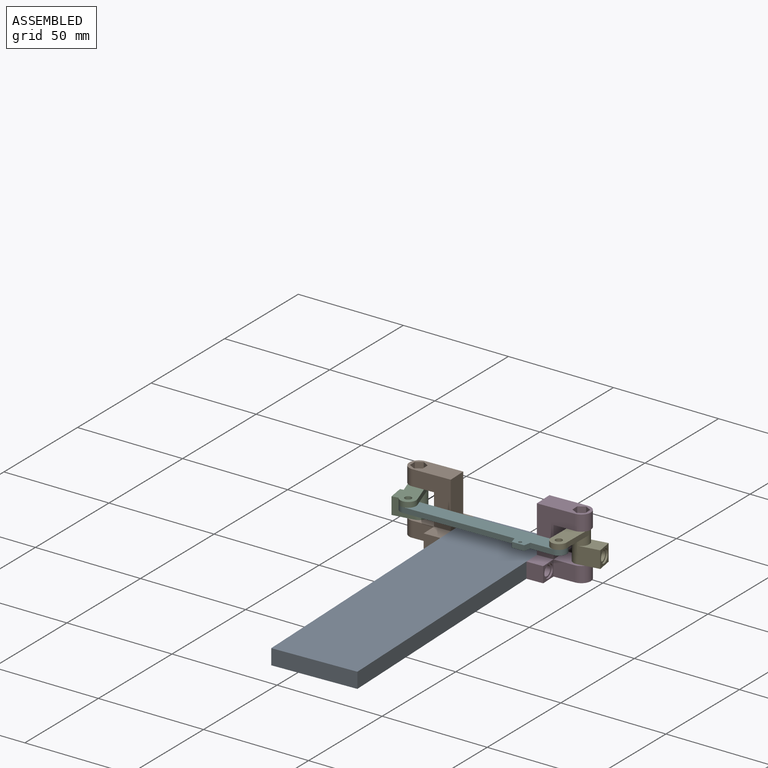
[diagram: assembled view]
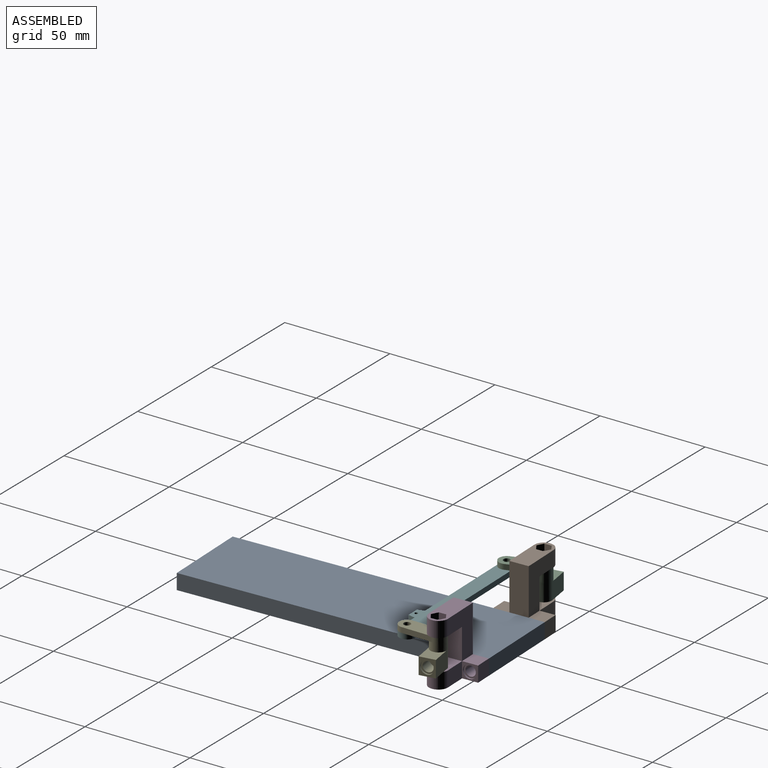
[diagram: assembled view, second angle]
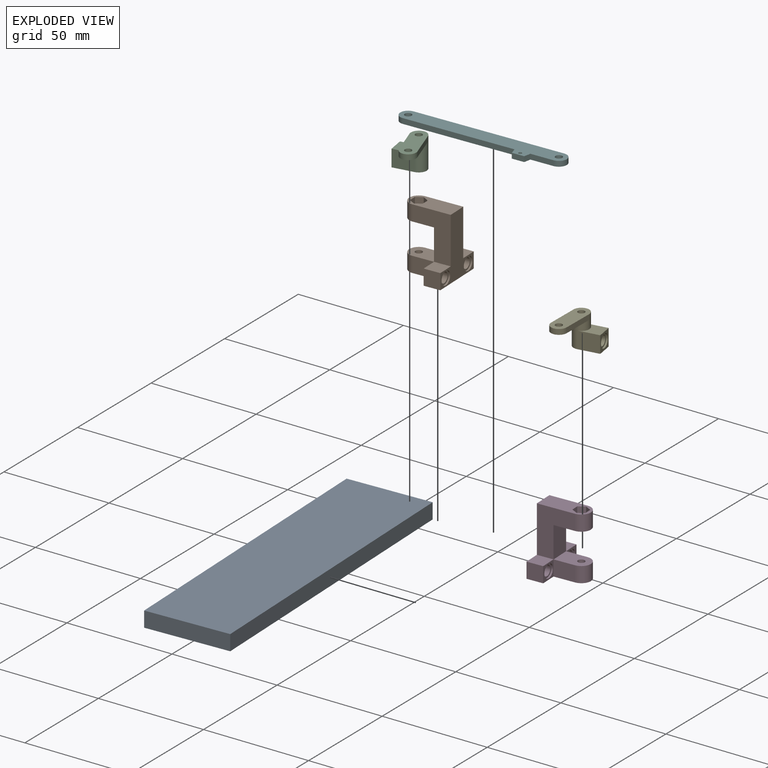
[diagram: exploded view]
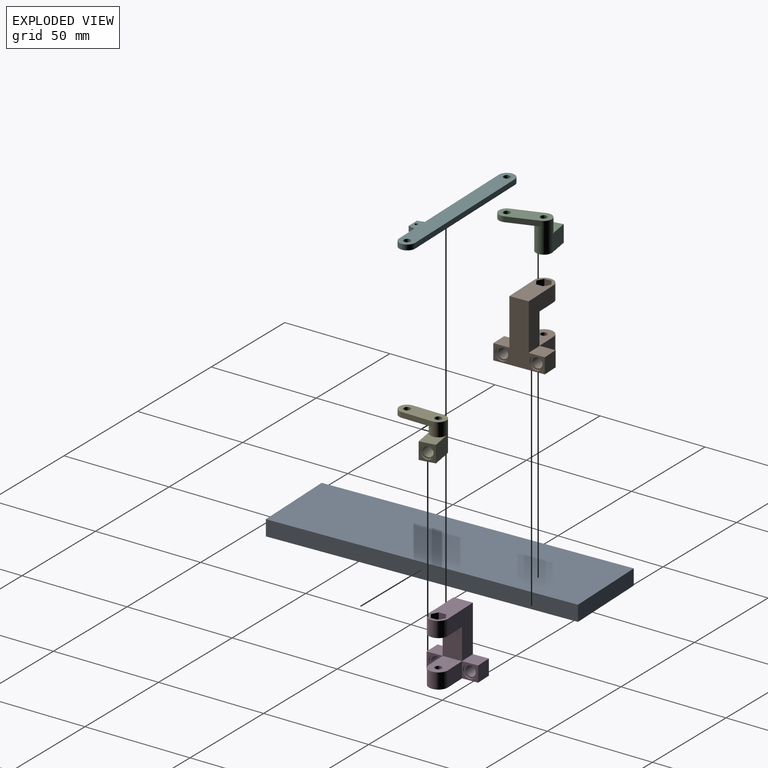
[diagram: exploded view, second angle]
ASSEMBLY  parts=6 mates=6
PART A: 6 faces, bbox 40x145x7.4 mm
  f0: plane 40x7.38mm, normal (0,1,0), area 295.2mm2, adj f1,f3,f4,f5
  f1: plane 145x7.38mm, normal (-1,0,0), area 1070.1mm2, adj f0,f2,f4,f5
  f2: plane 40x7.38mm, normal (0,-1,0), area 295.2mm2, adj f1,f3,f4,f5
  f3: plane 145x7.38mm, normal (1,0,0), area 1070.1mm2, adj f0,f2,f4,f5
  f4: plane 145x40mm, normal (0,0,1), area 5800mm2, adj f0,f1,f2,f3
  f5: plane 145x40mm, normal (0,0,-1), area 5800mm2, adj f0,f1,f2,f3
PART B: 37 faces, bbox 22.3x23.9x29.5 mm
  f0: cylinder r=2.4mm len=6.16mm, axis (1,0,0), area 92.9mm2, adj f31,f34
  f1: cylinder r=2.4mm len=6.16mm, axis (1,0,0), area 92.9mm2, adj f29,f36
  f2: cylinder r=1.6mm len=4.38mm, axis (0,0,-1), area 44mm2, adj f20,f28
  f3: plane 10x7.38mm, normal (0,-1,0), area 73.8mm2, adj f6,f13,f17,f21
  f4: plane 10x7.38mm, normal (0,1,0), area 73.8mm2, adj f6,f9,f17,f21
  f5: plane 22.14x17.76mm, normal (0,1,0), area 245.6mm2, adj f11,f15,f16,f18,f19,f20
  f6: cylinder r=4.5mm len=9mm, axis (0,0,-1), area 104.3mm2, adj f3,f4,f17,f21
  f7: cylinder r=1.6mm len=7.38mm, axis (0,0,-1), area 74.2mm2, adj f17,f21
  f8: plane 7.76x7.46mm, normal (0,0,1), area 57.9mm2, adj f11,f12,f13,f14
  f9: plane 7.46x7.38mm, normal (-1,0,0), area 24.8mm2, adj f4,f10,f16,f17,f30
  f10: plane 7.76x7.38mm, normal (0,1,0), area 57.3mm2, adj f9,f11,f16,f17
  f11: plane 29.52x23.91mm, normal (1,0,0), area 315.3mm2, adj f5,f8,f10,f12,f14,f16,f17,f18
  f12: plane 7.76x7.38mm, normal (0,-1,0), area 57.3mm2, adj f8,f11,f13,f17
  f13: plane 7.46x7.38mm, normal (-1,0,0), area 24.8mm2, adj f3,f8,f12,f17,f32
  f14: plane 22.14x17.76mm, normal (0,-1,0), area 245.6mm2, adj f8,f11,f15,f18,f19,f20
  f15: cylinder r=4.5mm len=9mm, axis (0,0,-1), area 104.3mm2, adj f5,f14,f18,f20
  f16: plane 7.76x7.46mm, normal (0,0,1), area 57.9mm2, adj f5,f9,f10,f11
  f17: plane 23.91x22.26mm, normal (0,0,-1), area 299.3mm2, adj f3,f4,f6,f7,f9,f10,f11,f12
  f18: plane 22.26x9mm, normal (0,0,1), area 160.5mm2, adj f5,f11,f14,f15,f22,f23,f24,f25
  f19: plane 14.76x9mm, normal (-1,0,0), area 132.8mm2, adj f5,f14,f20,f21
  f20: plane 14.5x9mm, normal (0,0,-1), area 113.8mm2, adj f2,f5,f14,f15,f19
  f21: plane 14.5x9mm, normal (0,0,1), area 113.8mm2, adj f3,f4,f6,f7,f19
  f22: plane 3.02x3mm, normal (-0.49,0.87,0), area 10.4mm2, adj f18,f23,f27,f28
  f23: plane 3x2.98mm, normal (0.51,0.86,0), area 10.4mm2, adj f18,f22,f24,f28
  f24: plane 3.46x3mm, normal (1,-0.01,0), area 10.4mm2, adj f18,f23,f25,f28
  f25: plane 3.02x3mm, normal (0.49,-0.87,0), area 10.4mm2, adj f18,f24,f26,f28
  f26: plane 3x2.98mm, normal (-0.51,-0.86,0), area 10.4mm2, adj f18,f25,f27,f28
  f27: plane 3.46x3mm, normal (-1,0.01,0), area 10.4mm2, adj f18,f22,f26,f28
  f28: plane 6.93x6.03mm, normal (0,0,1), area 23.1mm2, adj f2,f22,f23,f24,f25,f26,f27
  f29: plane 6.2x6.2mm, normal (-1,0,0), area 12.1mm2, adj f1,f30
  f30: cylinder r=3.1mm len=6.2mm, axis (-1,0,0), area 15.6mm2, adj f9,f29
  f31: plane 6.2x6.2mm, normal (-1,0,0), area 12.1mm2, adj f0,f32
  f32: cylinder r=3.1mm len=6.2mm, axis (-1,0,0), area 15.6mm2, adj f13,f31
  f33: cylinder r=3.1mm len=6.2mm, axis (1,0,0), area 15.6mm2, adj f11,f34
  f34: plane 6.2x6.2mm, normal (1,0,0), area 12.1mm2, adj f0,f33
  f35: cylinder r=3.1mm len=6.2mm, axis (1,0,0), area 15.6mm2, adj f11,f36
  f36: plane 6.2x6.2mm, normal (1,0,0), area 12.1mm2, adj f1,f35
PART C: 19 faces, bbox 16.4x22.3x14.5 mm
  f0: cylinder r=3.75mm len=14.5mm, axis (0,0,-1), area 217.9mm2, adj f2,f3,f4,f6,f8,f9,f10,f12
  f1: cylinder r=1.6mm len=14.5mm, axis (0,0,-1), area 145.8mm2, adj f2,f3
  f2: plane 22.27x10.1mm, normal (0,0,1), area 140.6mm2, adj f0,f1,f4,f5,f6,f7
  f3: plane 13.75x7.5mm, normal (0,0,-1), area 89mm2, adj f0,f1,f9,f10,f11
  f4: plane 14.77x2.6mm, normal (0.98,0.17,0), area 37.5mm2, adj f0,f2,f5,f8
  f5: cylinder r=3.75mm len=7.44mm, axis (0,0,1), area 29.5mm2, adj f2,f4,f6,f8
  f6: plane 14.77x2.6mm, normal (-0.98,-0.17,0), area 37.5mm2, adj f0,f2,f5,f8
  f7: cylinder r=1.6mm len=3.2mm, axis (0,0,1), area 25.1mm2, adj f2,f8
  f8: plane 19.17x10.05mm, normal (0,0,-1), area 104.5mm2, adj f0,f4,f5,f6,f7
  f9: plane 10x8mm, normal (0,-1,0), area 80mm2, adj f0,f3,f11,f12
  f10: plane 10x8mm, normal (0,1,0), area 80mm2, adj f0,f3,f11,f12
  f11: plane 8x7.5mm, normal (-1,0,0), area 29.8mm2, adj f3,f9,f10,f12,f13
  f12: plane 10x7.5mm, normal (0,0,1), area 52.9mm2, adj f0,f9,f10,f11
  f13: cylinder r=3.1mm len=6.2mm, axis (-1,0,0), area 15.6mm2, adj f11,f14
  f14: plane 6.2x6.2mm, normal (-1,0,0), area 12.1mm2, adj f13,f15
  f15: cylinder r=2.4mm len=6.16mm, axis (-1,0,0), area 92.9mm2, adj f14,f16
  f16: plane 6.2x6.2mm, normal (1,0,0), area 12.1mm2, adj f15,f17
  f17: cylinder r=3.1mm len=6.2mm, axis (1,0,0), area 15.6mm2, adj f16,f18
  f18: plane 6.2x6.2mm, normal (-1,0,0), area 30.2mm2, adj f17
PART D: 37 faces, bbox 22.3x23.9x29.5 mm
  f0: cylinder r=2.4mm len=6.16mm, axis (-1,0,0), area 92.9mm2, adj f31,f34
  f1: cylinder r=2.4mm len=6.16mm, axis (-1,0,0), area 92.9mm2, adj f29,f36
  f2: cylinder r=1.6mm len=4.38mm, axis (0,0,-1), area 44mm2, adj f20,f28
  f3: plane 10x7.38mm, normal (0,-1,0), area 73.8mm2, adj f6,f13,f17,f21
  f4: plane 10x7.38mm, normal (0,1,0), area 73.8mm2, adj f6,f9,f17,f21
  f5: plane 22.14x17.76mm, normal (0,1,0), area 245.6mm2, adj f11,f15,f16,f18,f19,f20
  f6: cylinder r=4.5mm len=9mm, axis (0,0,-1), area 104.3mm2, adj f3,f4,f17,f21
  f7: cylinder r=1.6mm len=7.38mm, axis (0,0,-1), area 74.2mm2, adj f17,f21
  f8: plane 7.76x7.46mm, normal (0,0,1), area 57.9mm2, adj f11,f12,f13,f14
  f9: plane 7.46x7.38mm, normal (1,0,0), area 24.8mm2, adj f4,f10,f16,f17,f30
  f10: plane 7.76x7.38mm, normal (0,1,0), area 57.3mm2, adj f9,f11,f16,f17
  f11: plane 29.52x23.91mm, normal (-1,0,0), area 315.3mm2, adj f5,f8,f10,f12,f14,f16,f17,f18
  f12: plane 7.76x7.38mm, normal (0,-1,0), area 57.3mm2, adj f8,f11,f13,f17
  f13: plane 7.46x7.38mm, normal (1,0,0), area 24.8mm2, adj f3,f8,f12,f17,f32
  f14: plane 22.14x17.76mm, normal (0,-1,0), area 245.6mm2, adj f8,f11,f15,f18,f19,f20
  f15: cylinder r=4.5mm len=9mm, axis (0,0,-1), area 104.3mm2, adj f5,f14,f18,f20
  f16: plane 7.76x7.46mm, normal (0,0,1), area 57.9mm2, adj f5,f9,f10,f11
  f17: plane 23.91x22.26mm, normal (0,0,-1), area 299.3mm2, adj f3,f4,f6,f7,f9,f10,f11,f12
  f18: plane 22.26x9mm, normal (0,0,1), area 160.5mm2, adj f5,f11,f14,f15,f22,f23,f24,f25
  f19: plane 14.76x9mm, normal (1,0,0), area 132.8mm2, adj f5,f14,f20,f21
  f20: plane 14.5x9mm, normal (0,0,-1), area 113.8mm2, adj f2,f5,f14,f15,f19
  f21: plane 14.5x9mm, normal (0,0,1), area 113.8mm2, adj f3,f4,f6,f7,f19
  f22: plane 3.02x3mm, normal (0.49,0.87,0), area 10.4mm2, adj f18,f23,f27,f28
  f23: plane 3x2.98mm, normal (-0.51,0.86,0), area 10.4mm2, adj f18,f22,f24,f28
  f24: plane 3.46x3mm, normal (-1,-0.01,0), area 10.4mm2, adj f18,f23,f25,f28
  f25: plane 3.02x3mm, normal (-0.49,-0.87,0), area 10.4mm2, adj f18,f24,f26,f28
  f26: plane 3x2.98mm, normal (0.51,-0.86,0), area 10.4mm2, adj f18,f25,f27,f28
  f27: plane 3.46x3mm, normal (1,0.01,0), area 10.4mm2, adj f18,f22,f26,f28
  f28: plane 6.93x6.03mm, normal (0,0,1), area 23.1mm2, adj f2,f22,f23,f24,f25,f26,f27
  f29: plane 6.2x6.2mm, normal (1,0,0), area 12.1mm2, adj f1,f30
  f30: cylinder r=3.1mm len=6.2mm, axis (1,0,0), area 15.6mm2, adj f9,f29
  f31: plane 6.2x6.2mm, normal (1,0,0), area 12.1mm2, adj f0,f32
  f32: cylinder r=3.1mm len=6.2mm, axis (1,0,0), area 15.6mm2, adj f13,f31
  f33: cylinder r=3.1mm len=6.2mm, axis (-1,0,0), area 15.6mm2, adj f11,f34
  f34: plane 6.2x6.2mm, normal (-1,0,0), area 12.1mm2, adj f0,f33
  f35: cylinder r=3.1mm len=6.2mm, axis (-1,0,0), area 15.6mm2, adj f11,f36
  f36: plane 6.2x6.2mm, normal (-1,0,0), area 12.1mm2, adj f1,f35
PART E: 19 faces, bbox 16.4x22.3x14.5 mm
  f0: cylinder r=3.75mm len=14.5mm, axis (0,0,-1), area 217.9mm2, adj f2,f3,f4,f6,f8,f9,f10,f12
  f1: cylinder r=1.6mm len=14.5mm, axis (0,0,-1), area 145.8mm2, adj f2,f3
  f2: plane 22.27x10.1mm, normal (0,0,1), area 140.6mm2, adj f0,f1,f4,f5,f6,f7
  f3: plane 13.75x7.5mm, normal (0,0,-1), area 89mm2, adj f0,f1,f9,f10,f11
  f4: plane 14.77x2.6mm, normal (-0.98,0.17,0), area 37.5mm2, adj f0,f2,f5,f8
  f5: cylinder r=3.75mm len=7.44mm, axis (0,0,1), area 29.5mm2, adj f2,f4,f6,f8
  f6: plane 14.77x2.6mm, normal (0.98,-0.17,0), area 37.5mm2, adj f0,f2,f5,f8
  f7: cylinder r=1.6mm len=3.2mm, axis (0,0,1), area 25.1mm2, adj f2,f8
  f8: plane 19.17x10.05mm, normal (0,0,-1), area 104.5mm2, adj f0,f4,f5,f6,f7
  f9: plane 10x8mm, normal (0,-1,0), area 80mm2, adj f0,f3,f11,f12
  f10: plane 10x8mm, normal (0,1,0), area 80mm2, adj f0,f3,f11,f12
  f11: plane 8x7.5mm, normal (1,0,0), area 29.8mm2, adj f3,f9,f10,f12,f13
  f12: plane 10x7.5mm, normal (0,0,1), area 52.9mm2, adj f0,f9,f10,f11
  f13: cylinder r=3.1mm len=6.2mm, axis (1,0,0), area 15.6mm2, adj f11,f14
  f14: plane 6.2x6.2mm, normal (1,0,0), area 12.1mm2, adj f13,f15
  f15: cylinder r=2.4mm len=6.16mm, axis (1,0,0), area 92.9mm2, adj f14,f16
  f16: plane 6.2x6.2mm, normal (-1,0,0), area 12.1mm2, adj f15,f17
  f17: cylinder r=3.1mm len=6.2mm, axis (-1,0,0), area 15.6mm2, adj f16,f18
  f18: plane 6.2x6.2mm, normal (1,0,0), area 30.2mm2, adj f17
PART F: 13 faces, bbox 77.9x10.7x2.5 mm
  f0: plane 10.82x2.5mm, normal (0,-1,0), area 27.1mm2, adj f1,f9,f11,f12
  f1: cylinder r=3.75mm len=7.5mm, axis (0,0,-1), area 29.5mm2, adj f0,f2,f11,f12
  f2: plane 70.42x2.5mm, normal (0,1,0), area 176mm2, adj f1,f3,f11,f12
  f3: cylinder r=3.75mm len=7.5mm, axis (0,0,-1), area 29.5mm2, adj f2,f4,f11,f12
  f4: plane 52.23x2.5mm, normal (0,-1,0), area 130.6mm2, adj f3,f5,f11,f12
  f5: plane 3.23x2.5mm, normal (-0.97,-0.24,0), area 8.3mm2, adj f4,f6,f11,f12
  f6: plane 5.79x2.5mm, normal (0,-1,0), area 14.5mm2, adj f5,f9,f11,f12
  f7: cylinder r=1.6mm len=3.2mm, axis (0,0,-1), area 25.1mm2, adj f11,f12
  f8: cylinder r=0.75mm len=2.5mm, axis (0,0,-1), area 11.8mm2, adj f11,f12
  f9: plane 3.23x2.5mm, normal (0.97,-0.24,0), area 8.3mm2, adj f0,f6,f11,f12
  f10: cylinder r=1.6mm len=3.2mm, axis (0,0,-1), area 25.1mm2, adj f11,f12
  f11: plane 77.92x10.73mm, normal (0,0,1), area 575.7mm2, adj f0,f1,f2,f3,f4,f5,f6,f7
  f12: plane 77.92x10.73mm, normal (0,0,-1), area 575.7mm2, adj f0,f1,f2,f3,f4,f5,f6,f7
PLACE A rot(axis=(0,0,1),2deg) t=(8.4,-67.88,-7.62)mm fixed
PLACE B rot(axis=(0,0,1),2deg) t=(8.46,-67.91,-7.62)mm
PLACE C rot(axis=(0,0,1),9deg) t=(15.34,-62.63,-7.36)mm
PLACE D rot(axis=(0,0,1),2deg) t=(8.35,-67.92,-7.62)mm
PLACE E rot(axis=(0,0,1),9.2deg) t=(16.4,-71.9,-7.36)mm
PLACE F rot(axis=(0,0,1),1.5deg) t=(9.81,-67.75,-12.36)mm
MATE revolute F.f1 <-> E.f5  axis (0,0,1) through (43.79,-21.04,12.02)mm
MATE fastened A.f1 <-> B.f11  axis (-1,-0.04,0) through (-14.16,3.86,-3.93)mm
MATE fastened D.f11 <-> A.f3  axis (-1,-0.04,0) through (25.82,5.28,-3.93)mm
MATE revolute F.f3 <-> C.f5  axis (0,0,1) through (-26.6,-22.9,12.02)mm
MATE revolute D.f2 <-> E.f0  axis (0,0,-1) through (43.99,-6.04,14.52)mm
MATE revolute C.f0 <-> B.f2  axis (0,0,1) through (-31.48,-8.71,14.52)mm
